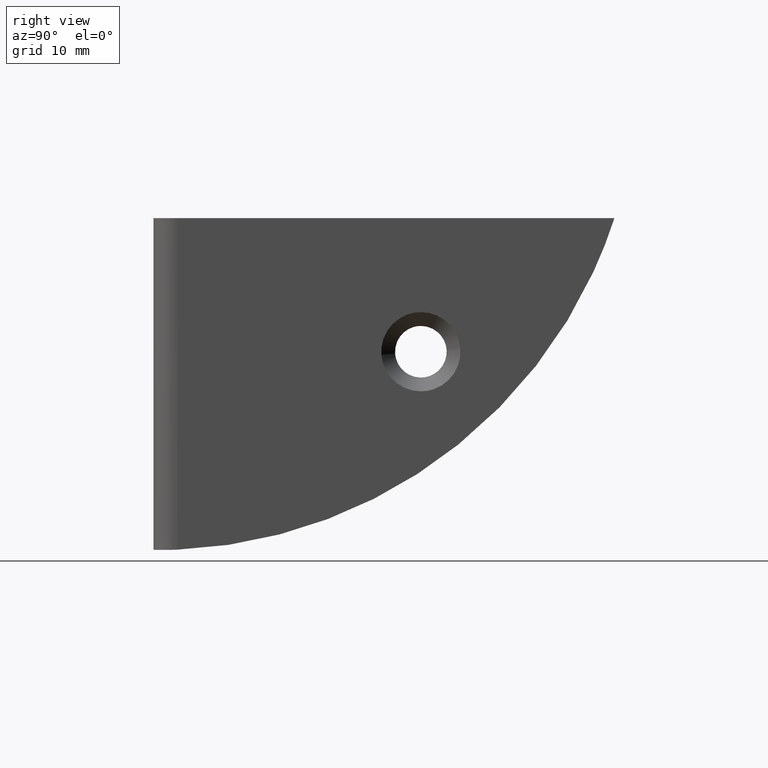
[diagram: clean part render]
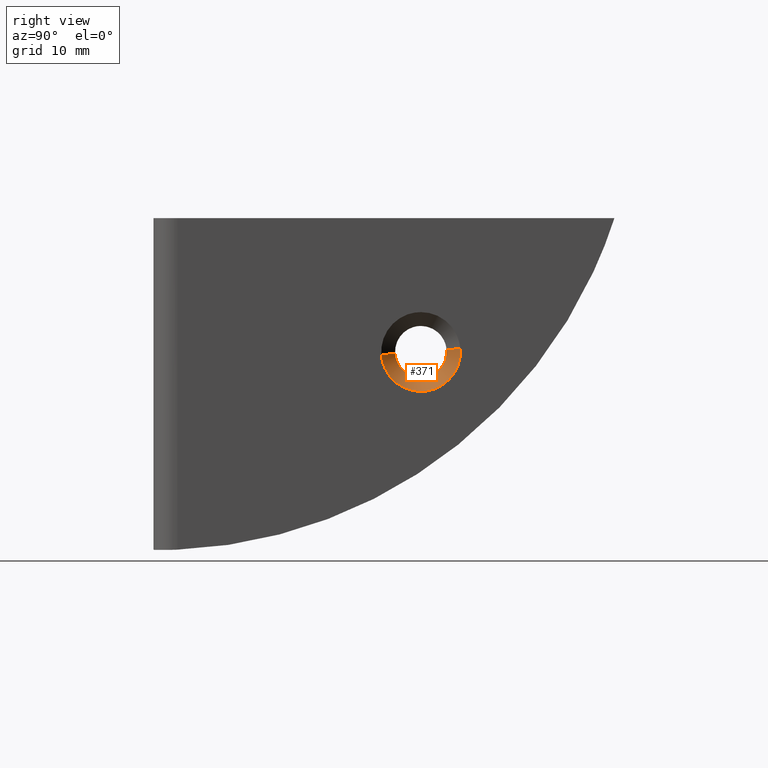
[diagram: same view with one face highlighted and labeled with its STEP entity id]
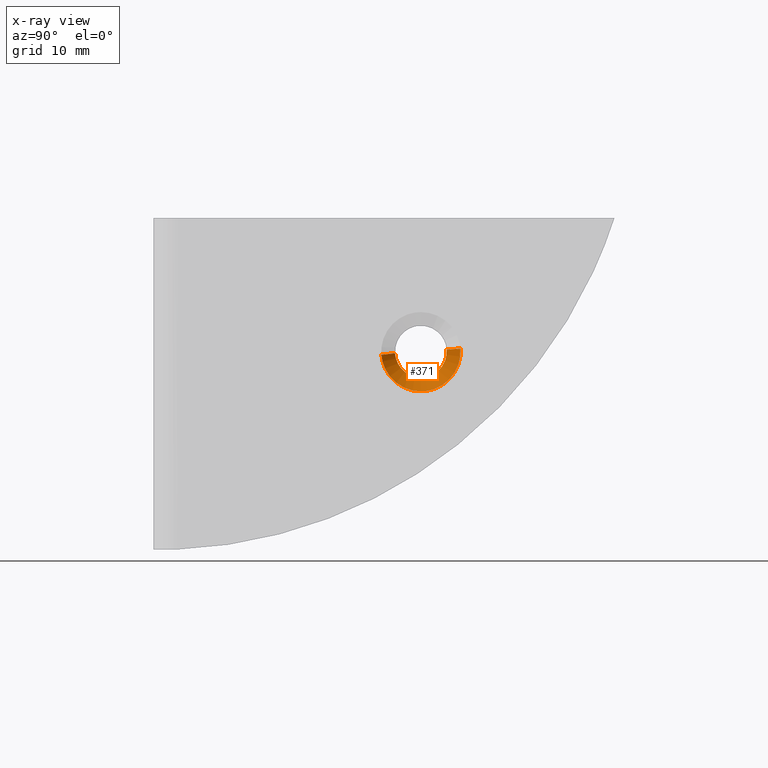
[diagram: x-ray of the same camera — body ghosted, the highlighted face saturated]
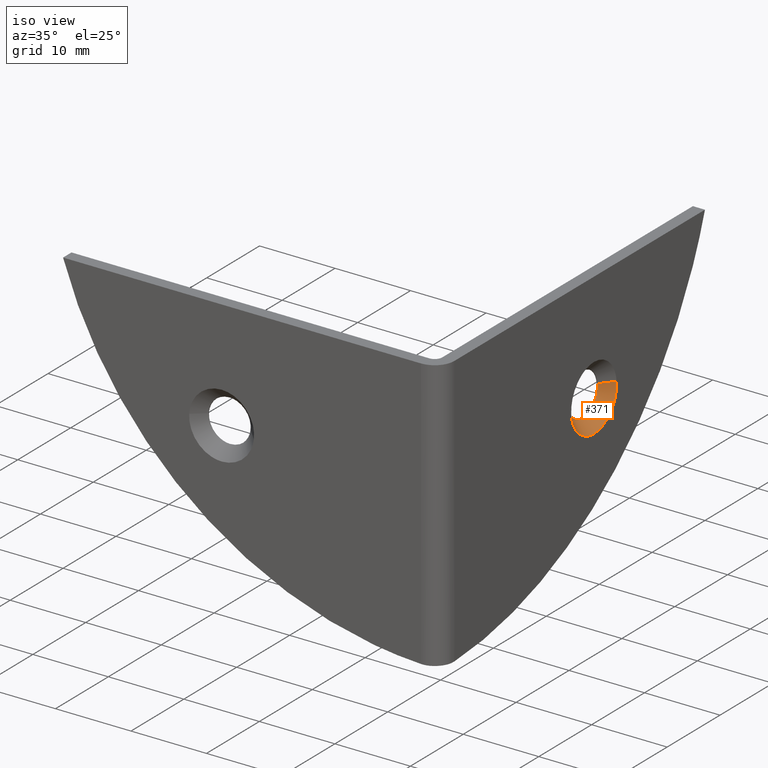
[diagram: same view with one face highlighted and labeled with its STEP entity id]
A machine part, right view. The second image highlights one B-rep face of the part: STEP entity #371.
The next image is the same camera in x-ray: the body ghosted, the highlighted face saturated — about 0% of this face is hidden behind the body in this view.
A second angle (iso view) of the same face is appended — the face is thin or edge-on in the first view.
In plain terms, the highlighted face is a freeform B-spline surface patch.
Its self-contained STEP definition (entity closure, byte-faithful):
#62=CARTESIAN_POINT('',(-1.500000000000210,31.781713782970819,21.180518498767050));
#63=VERTEX_POINT('',#62);
#64=CARTESIAN_POINT('',(-1.500000000000210,29.0,18.699999999999999));
#65=VERTEX_POINT('',#64);
#66=CARTESIAN_POINT('',(-1.500000000000210,31.781713782970815,21.180518498767047));
#67=CARTESIAN_POINT('',(-1.500000000000210,31.496825066594930,18.699999999999999));
#68=CARTESIAN_POINT('',(-1.500000000000210,29.0,18.699999999999999));
#76=(BOUNDED_CURVE()B_SPLINE_CURVE(2,(#66,#67,#68),.UNSPECIFIED.,.F.,.U.)B_SPLINE_CURVE_WITH_KNOTS((3,3),(0.269767712067815,0.500000000000000),.UNSPECIFIED.)CURVE()GEOMETRIC_REPRESENTATION_ITEM()RATIONAL_B_SPLINE_CURVE((0.957343822877729,0.730266096451027,1.0))REPRESENTATION_ITEM(''));
#77=EDGE_CURVE('',#63,#65,#76,.T.);
#116=CARTESIAN_POINT('',(-1.500000000000062,26.205222549901880,21.329064326651871));
#117=VERTEX_POINT('',#116);
#123=CARTESIAN_POINT('',(-1.500000000000210,29.0,18.699999999999999));
#124=CARTESIAN_POINT('',(-1.500000000000210,26.366022788552709,18.699999999999996));
#125=CARTESIAN_POINT('',(-1.500000000000062,26.205222549901876,21.329064326651867));
#133=(BOUNDED_CURVE()B_SPLINE_CURVE(2,(#123,#124,#125),.UNSPECIFIED.,.F.,.U.)B_SPLINE_CURVE_WITH_KNOTS((3,3),(0.500000000000000,0.739332976895690),.UNSPECIFIED.)CURVE()GEOMETRIC_REPRESENTATION_ITEM()RATIONAL_B_SPLINE_CURVE((1.0,0.719603976115263,0.976072073078918))REPRESENTATION_ITEM(''));
#134=EDGE_CURVE('',#65,#117,#133,.T.);
#161=CARTESIAN_POINT('',(-1.499999999975015,31.791368534462869,21.719685468230580));
#162=VERTEX_POINT('',#161);
#163=CARTESIAN_POINT('',(-1.499999999975015,31.791368534462869,21.719685468230576));
#164=CARTESIAN_POINT('',(-1.500000000000210,31.800000000000001,21.610012299812997));
#165=CARTESIAN_POINT('',(-1.500000000000210,31.800000000000001,21.500000000000000));
#166=CARTESIAN_POINT('',(-1.500000000000210,31.799999999999997,21.339736105523318));
#167=CARTESIAN_POINT('',(-1.500000000000209,31.781713782970819,21.180518498767047));
#175=(BOUNDED_CURVE()B_SPLINE_CURVE(2,(#163,#164,#165,#166,#167),.UNSPECIFIED.,.F.,.U.)B_SPLINE_CURVE_WITH_KNOTS((3,2,3),(0.236331300609353,0.250000000000000,0.269767712067815),.UNSPECIFIED.)CURVE()GEOMETRIC_REPRESENTATION_ITEM()RATIONAL_B_SPLINE_CURVE((0.969723356122951,0.983986122553919,1.0,0.976840684735521,0.957343822877730))REPRESENTATION_ITEM(''));
#176=EDGE_CURVE('',#162,#63,#175,.T.);
#264=CARTESIAN_POINT('',(0.000000013452583,33.286744546128453,21.837374142358239));
#265=VERTEX_POINT('',#264);
#266=CARTESIAN_POINT('',(-1.499999999975015,31.791368534462869,21.719685468230580));
#267=CARTESIAN_POINT('',(0.000000013452583,33.286744546128453,21.837374142358239));
#268=QUASI_UNIFORM_CURVE('',1,(#266,#267),.UNSPECIFIED.,.F.,.U.);
#269=EDGE_CURVE('',#162,#265,#268,.T.);
#286=CARTESIAN_POINT('',(0.000000013452583,24.713255453871550,21.162625857641761));
#287=VERTEX_POINT('',#286);
#303=CARTESIAN_POINT('',(-1.500000000000062,26.205222549901880,21.329064326651871));
#304=CARTESIAN_POINT('',(0.000000013452583,24.713255453871550,21.162625857641761));
#305=QUASI_UNIFORM_CURVE('',1,(#303,#304),.UNSPECIFIED.,.F.,.U.);
#306=EDGE_CURVE('',#117,#287,#305,.T.);
#312=CARTESIAN_POINT('',(-1.537500000000214,26.239237694199666,21.369381581121480));
#313=CARTESIAN_POINT('',(-1.537500000000216,26.242604686314937,21.326599889959912));
#314=CARTESIAN_POINT('',(-1.537500000000215,26.462759117510423,18.529272613614065));
#315=CARTESIAN_POINT('',(-1.537500000000215,29.216743251948170,18.746015865562239));
#316=CARTESIAN_POINT('',(-1.537500000000215,31.970727386385931,18.962759117510419));
#317=CARTESIAN_POINT('',(-1.537500000000216,31.752446601113089,21.736279465160166));
#318=CARTESIAN_POINT('',(-1.537500000000215,31.750918076933118,21.755701206334958));
#319=CARTESIAN_POINT('',(0.038437500000001,24.664291505494575,21.294867023835920));
#320=CARTESIAN_POINT('',(0.038437500000001,24.669579282817679,21.227679442569386));
#321=CARTESIAN_POINT('',(0.038437500000001,25.015326338053772,16.834546571810186));
#322=CARTESIAN_POINT('',(0.038437500000001,29.340389883121791,17.174936454931970));
#323=CARTESIAN_POINT('',(0.038437500000001,33.665453428189821,17.515326338053768));
#324=CARTESIAN_POINT('',(0.038437500000001,33.322648887246025,21.871071019775879));
#325=CARTESIAN_POINT('',(0.038437500000001,33.320248378061585,21.901572380944380));
#333=(BOUNDED_SURFACE()B_SPLINE_SURFACE(2,1,((#312,#319),(#313,#320),(#314,#321),(#315,#322),(#316,#323),(#317,#324),(#318,#325)),.UNSPECIFIED.,.F.,.F.,.U.)B_SPLINE_SURFACE_WITH_KNOTS((3,1,2,1,3),(2,2),(0.0,0.161039366774669,7.349197974807115,14.537356582839561,14.609681773718011),(0.0,2.229257033289586),.UNSPECIFIED.)GEOMETRIC_REPRESENTATION_ITEM()RATIONAL_B_SPLINE_SURFACE(((1.013123622074117,1.013123622074117),(1.006561811037058,1.006561811037058),(0.707106781186548,0.707106781186548),(1.0,1.0),(0.707106781186548,0.707106781186548),(1.002947007587453,1.002947007587453),(1.005894015174906,1.005894015174906)))REPRESENTATION_ITEM('')SURFACE());
#334=ORIENTED_EDGE('',*,*,#176,.T.);
#335=ORIENTED_EDGE('',*,*,#77,.T.);
#336=ORIENTED_EDGE('',*,*,#134,.T.);
#337=ORIENTED_EDGE('',*,*,#306,.T.);
#338=CARTESIAN_POINT('',(-4.537167E-015,29.0,17.199999999999790));
#339=VERTEX_POINT('',#338);
#340=CARTESIAN_POINT('',(-4.537167E-015,29.0,17.199999999999790));
#341=CARTESIAN_POINT('',(-4.537167E-015,25.025120941068213,17.199999999999797));
#342=CARTESIAN_POINT('',(0.000000013452583,24.713255453871550,21.162625857641764));
#350=(BOUNDED_CURVE()B_SPLINE_CURVE(2,(#340,#341,#342),.UNSPECIFIED.,.F.,.U.)B_SPLINE_CURVE_WITH_KNOTS((3,3),(0.500000000000000,0.736331298259553),.UNSPECIFIED.)CURVE()GEOMETRIC_REPRESENTATION_ITEM()RATIONAL_B_SPLINE_CURVE((1.0,0.723120661385589,0.969723351219100))REPRESENTATION_ITEM(''));
#351=EDGE_CURVE('',#339,#287,#350,.T.);
#352=ORIENTED_EDGE('',*,*,#351,.F.);
#353=CARTESIAN_POINT('',(0.000000013452583,33.286744546128453,21.837374142358232));
#354=CARTESIAN_POINT('',(-4.537167E-015,33.300000000000203,21.668947489943697));
#355=CARTESIAN_POINT('',(-4.537167E-015,33.300000000000203,21.500000000000000));
#356=CARTESIAN_POINT('',(-4.537167E-015,33.300000000000210,17.199999999999793));
#357=CARTESIAN_POINT('',(-4.537167E-015,29.0,17.199999999999790));
#365=(BOUNDED_CURVE()B_SPLINE_CURVE(2,(#353,#354,#355,#356,#357),.UNSPECIFIED.,.F.,.U.)B_SPLINE_CURVE_WITH_KNOTS((3,2,3),(0.236331298259553,0.250000000000000,0.500000000000000),.UNSPECIFIED.)CURVE()GEOMETRIC_REPRESENTATION_ITEM()RATIONAL_B_SPLINE_CURVE((0.969723351219100,0.983986119800958,1.0,0.707106781186548,1.0))REPRESENTATION_ITEM(''));
#366=EDGE_CURVE('',#265,#339,#365,.T.);
#367=ORIENTED_EDGE('',*,*,#366,.F.);
#368=ORIENTED_EDGE('',*,*,#269,.F.);
#369=EDGE_LOOP('',(#334,#335,#336,#337,#352,#367,#368));
#370=FACE_OUTER_BOUND('',#369,.T.);
#371=ADVANCED_FACE('',(#370),#333,.F.);